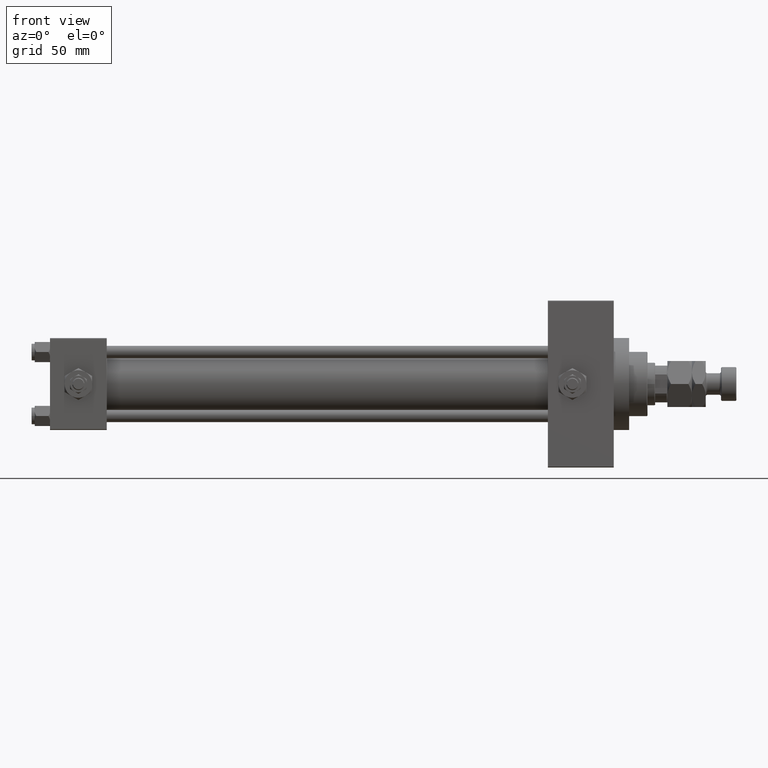
[diagram: clean part render]
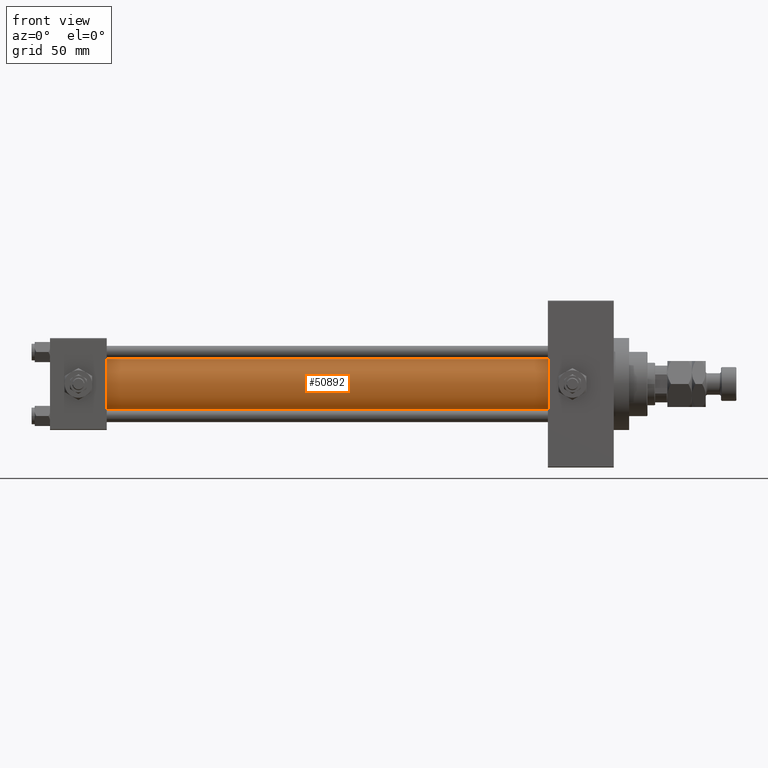
[diagram: same view with one face highlighted and labeled with its STEP entity id]
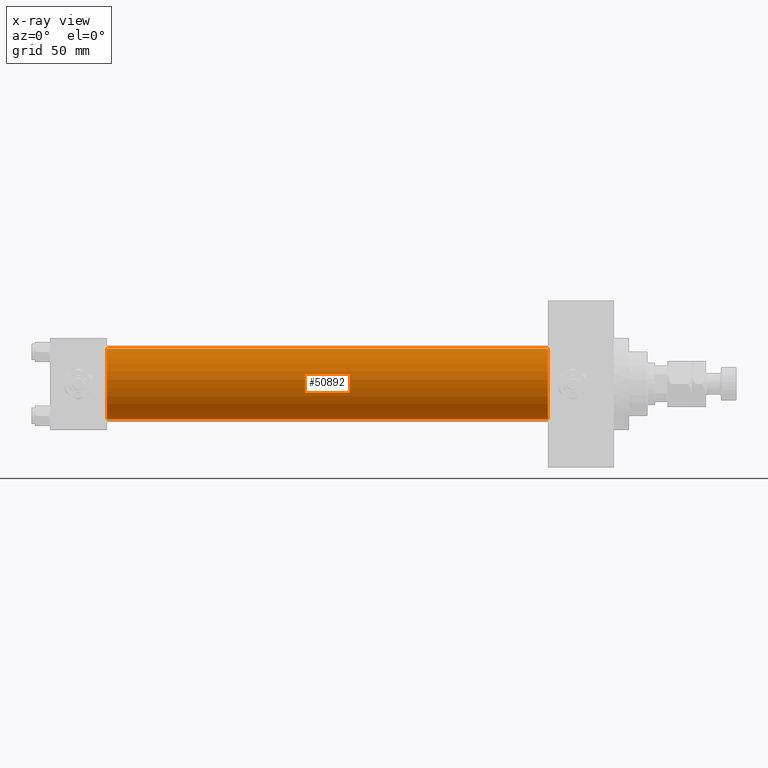
[diagram: x-ray of the same camera — body ghosted, the highlighted face saturated]
A machine part, front view. The second image highlights one B-rep face of the part: STEP entity #50892.
The next image is the same camera in x-ray: the body ghosted, the highlighted face saturated — about 0% of this face is hidden behind the body in this view.
In plain terms, the highlighted cylindrical surface (edge-blend (fillet) strip) has radius 23 mm, axis along (-1, -0, -0).
Its self-contained STEP definition (entity closure, byte-faithful):
#47 = FACE_OUTER_BOUND ( 'NONE', #49083, .T. ) ;
#595 = VERTEX_POINT ( 'NONE', #36960 ) ;
#1202 = VERTEX_POINT ( 'NONE', #35828 ) ;
#2079 = EDGE_CURVE ( 'NONE', #2896, #5659, #29104, .T. ) ;
#2896 = VERTEX_POINT ( 'NONE', #19073 ) ;
#3841 = VECTOR ( 'NONE', #33906, 1000.000000000000000 ) ;
#5659 = VERTEX_POINT ( 'NONE', #20873 ) ;
#5672 = CIRCLE ( 'NONE', #27074, 23.00000000000000000 ) ;
#5698 = ORIENTED_EDGE ( 'NONE', *, *, #42263, .F. ) ;
#8244 = AXIS2_PLACEMENT_3D ( 'NONE', #34617, #43094, #27126 ) ;
#10100 = LINE ( 'NONE', #32578, #25557 ) ;
#13907 = EDGE_CURVE ( 'NONE', #595, #5659, #18922, .T. ) ;
#16023 = ORIENTED_EDGE ( 'NONE', *, *, #13907, .F. ) ;
#18181 = DIRECTION ( 'NONE',  ( 0.000000000000000000, 0.000000000000000000, -1.000000000000000000 ) ) ;
#18922 = LINE ( 'NONE', #33655, #3841 ) ;
#19073 = CARTESIAN_POINT ( 'NONE',  ( 36.99999999999997868, -2.602085213965210642E-15, 23.00000000000000000 ) ) ;
#20053 = AXIS2_PLACEMENT_3D ( 'NONE', #35258, #34740, #26993 ) ;
#20873 = CARTESIAN_POINT ( 'NONE',  ( 36.99999999999997868, 2.146024240737016609E-16, -23.00000000000000000 ) ) ;
#22055 = CARTESIAN_POINT ( 'NONE',  ( 324.9999999999999432, -2.602085213965210642E-15, 0.000000000000000000 ) ) ;
#22553 = DIRECTION ( 'NONE',  ( 1.000000000000000000, 0.000000000000000000, 0.000000000000000000 ) ) ;
#23201 = EDGE_CURVE ( 'NONE', #1202, #2896, #10100, .T. ) ;
#25557 = VECTOR ( 'NONE', #48262, 1000.000000000000000 ) ;
#26993 = DIRECTION ( 'NONE',  ( 0.000000000000000000, 0.000000000000000000, 1.000000000000000000 ) ) ;
#27074 = AXIS2_PLACEMENT_3D ( 'NONE', #22055, #22553, #18181 ) ;
#27126 = DIRECTION ( 'NONE',  ( 0.000000000000000000, 0.000000000000000000, 1.000000000000000000 ) ) ;
#29104 = CIRCLE ( 'NONE', #20053, 23.00000000000000000 ) ;
#32578 = CARTESIAN_POINT ( 'NONE',  ( 324.9999999999999432, -2.602085213965210642E-15, 23.00000000000000000 ) ) ;
#33655 = CARTESIAN_POINT ( 'NONE',  ( 324.9999999999999432, 2.146024240737016609E-16, -23.00000000000000000 ) ) ;
#33906 = DIRECTION ( 'NONE',  ( -1.000000000000000000, -0.000000000000000000, -0.000000000000000000 ) ) ;
#34617 = CARTESIAN_POINT ( 'NONE',  ( 324.9999999999999432, -2.602085213965210642E-15, 0.000000000000000000 ) ) ;
#34740 = DIRECTION ( 'NONE',  ( 1.000000000000000000, -0.000000000000000000, 0.000000000000000000 ) ) ;
#35258 = CARTESIAN_POINT ( 'NONE',  ( 36.99999999999997868, -2.602085213965210642E-15, 0.000000000000000000 ) ) ;
#35828 = CARTESIAN_POINT ( 'NONE',  ( 324.9999999999999432, -2.602085213965210642E-15, 23.00000000000000000 ) ) ;
#36960 = CARTESIAN_POINT ( 'NONE',  ( 324.9999999999999432, 2.146024240737016609E-16, -23.00000000000000000 ) ) ;
#38733 = CYLINDRICAL_SURFACE ( 'NONE', #8244, 23.00000000000000000 ) ;
#40914 = ORIENTED_EDGE ( 'NONE', *, *, #23201, .T. ) ;
#42263 = EDGE_CURVE ( 'NONE', #1202, #595, #5672, .T. ) ;
#43094 = DIRECTION ( 'NONE',  ( -1.000000000000000000, -0.000000000000000000, -0.000000000000000000 ) ) ;
#47750 = ORIENTED_EDGE ( 'NONE', *, *, #2079, .T. ) ;
#48262 = DIRECTION ( 'NONE',  ( -1.000000000000000000, -0.000000000000000000, -0.000000000000000000 ) ) ;
#49083 = EDGE_LOOP ( 'NONE', ( #16023, #5698, #40914, #47750 ) ) ;
#50892 = ADVANCED_FACE ( 'NONE', ( #47 ), #38733, .T. ) ;